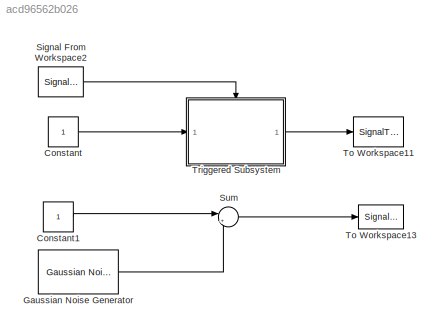
MODEL slx_acd96562b026
KIND model
BLOCK [Constant] Constant
  SampleTime = 1
  VectorParams1D = off
BLOCK [Constant] Constant1
  SampleTime = 1
  VectorParams1D = off
BLOCK [Reference] Gaussian Noise Generator  REF=commnoisgen2/Gaussian Noise
Generator
  Ports = [0, 1]
  SourceBlock = commnoisgen2/Gaussian Noise\nGenerator
  SourceType = Gaussian Noise Generator
  Ts = 1
  d = 1
  frameBased = on
  m = 0
  orient = off
  outDataType = double
  s = 41
  sampPerFrame = 1
BLOCK [Reference] Signal From Workspace2  REF=dspsrcs4/Signal From
Workspace
  OutputAfterFinalValue = Cyclic repetition
  Ports = [0, 1]
  SourceBlock = dspsrcs4/Signal From\nWorkspace
  SourceType = Signal From Workspace
  Ts = 1
  X = [0 1]
  ignoreOrWarnInputAndFrameLengths = off
  nsamps = 1
BLOCK [Sum] Sum
  IconShape = round
  InputSameDT = off
  Inputs = |++
  OutDataTypeStr = Inherit: Inherit via internal rule
  Ports = [2, 1]
  SaturateOnIntegerOverflow = off
BLOCK [SignalToWorkspace] To Workspace11
  MaxDataPoints = inf
  Ports = [1]
  VariableName = trig_out
BLOCK [SignalToWorkspace] To Workspace13
  MaxDataPoints = inf
  Ports = [1]
  VariableName = sim_out
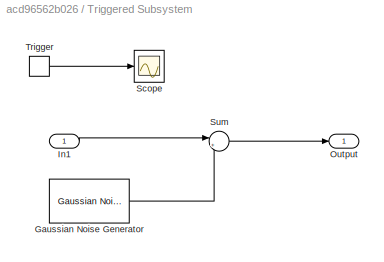
BLOCK [SubSystem] Triggered Subsystem
  Ports = [1, 1, 0, 1]
  RequestExecContextInheritance = off
  TreatAsAtomicUnit = on
BLOCK [Reference] Triggered Subsystem/Gaussian Noise Generator  REF=commnoisgen2/Gaussian Noise
Generator
  Ports = [0, 1]
  SourceBlock = commnoisgen2/Gaussian Noise\nGenerator
  SourceType = Gaussian Noise Generator
  Ts = -1
  d = 1
  frameBased = on
  m = 0
  orient = off
  outDataType = double
  s = 41
  sampPerFrame = 1
BLOCK [Inport] Triggered Subsystem/In1
  IconDisplay = Port number
BLOCK [Outport] Triggered Subsystem/Output
  IconDisplay = Port number
BLOCK [Scope] Triggered Subsystem/Scope
  DataFormat = StructureWithTime
  Floating = off
  NumInputPorts = 1
  Ports = [1]
  SampleTime = 0
  ShowLegends = off
BLOCK [Sum] Triggered Subsystem/Sum
  IconShape = round
  InputSameDT = off
  Inputs = |++
  OutDataTypeStr = Inherit: Inherit via internal rule
  Ports = [2, 1]
  SaturateOnIntegerOverflow = off
BLOCK [TriggerPort] Triggered Subsystem/Trigger
  Ports = [0, 1]
  ShowOutputPort = on
LINE Constant1:1 -> Sum:1
LINE Constant:1 -> Triggered Subsystem:1
LINE Gaussian Noise Generator:1 -> Sum:2
LINE Signal From Workspace2:1 -> Triggered Subsystem:trigger
LINE Sum:1 -> To Workspace13:1
LINE Triggered Subsystem/Gaussian Noise Generator:1 -> Triggered Subsystem/Sum:2
LINE Triggered Subsystem/In1:1 -> Triggered Subsystem/Sum:1
LINE Triggered Subsystem/Sum:1 -> Triggered Subsystem/Output:1
LINE Triggered Subsystem/Trigger:1 -> Triggered Subsystem/Scope:1
LINE Triggered Subsystem:1 -> To Workspace11:1
